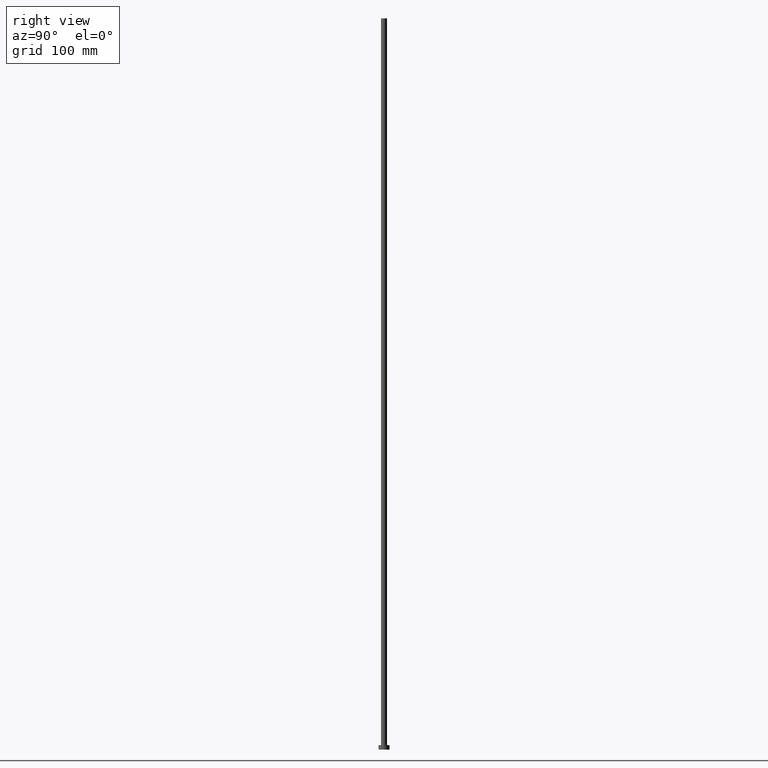
[diagram: clean part render]
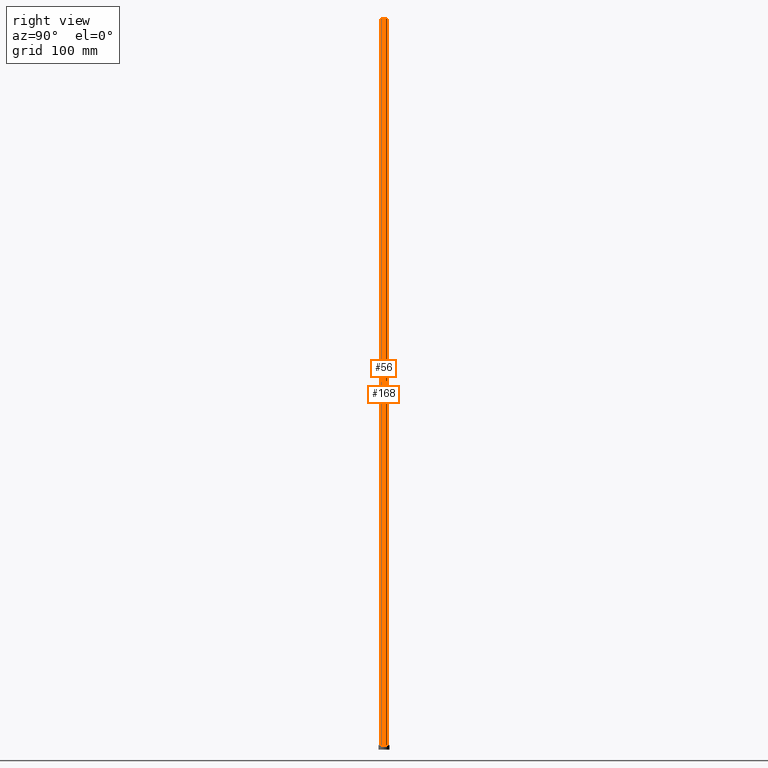
[diagram: same view with one multi-face feature highlighted, each face labeled with its STEP entity id]
A machine part, right view. The highlighted faces form ONE feature: a constant-radius fillet chain: 2 tangent blend faces with common blend radius 3.25 mm. The faces share edges in the B-rep.
Their STEP definitions:
[1] entity #168 (Cylinder):
#10 = EDGE_CURVE ( 'NONE', #109, #92, #190, .T. ) ;
#11 = ORIENTED_EDGE ( 'NONE', *, *, #247, .F. ) ;
#30 = EDGE_CURVE ( 'NONE', #94, #150, #206, .T. ) ;
#32 = CYLINDRICAL_SURFACE ( 'NONE', #170, 3.250000000000000444 ) ;
#50 = CARTESIAN_POINT ( 'NONE',  ( -3.250000000000000444, 0.000000000000000000, 800.0000000000000000 ) ) ;
#52 = EDGE_CURVE ( 'NONE', #109, #94, #119, .T. ) ;
#54 = AXIS2_PLACEMENT_3D ( 'NONE', #117, #160, #223 ) ;
#58 = DIRECTION ( 'NONE',  ( -0.000000000000000000, -0.000000000000000000, -1.000000000000000000 ) ) ;
#62 = CARTESIAN_POINT ( 'NONE',  ( 0.000000000000000000, 0.000000000000000000, 800.0000000000000000 ) ) ;
#68 = EDGE_LOOP ( 'NONE', ( #172, #131, #189, #11 ) ) ;
#76 = CARTESIAN_POINT ( 'NONE',  ( 3.250000000000000444, 3.980102097228898231E-16, 800.0000000000000000 ) ) ;
#82 = DIRECTION ( 'NONE',  ( -0.000000000000000000, -0.000000000000000000, -1.000000000000000000 ) ) ;
#91 = VECTOR ( 'NONE', #82, 1000.000000000000000 ) ;
#92 = VERTEX_POINT ( 'NONE', #140 ) ;
#94 = VERTEX_POINT ( 'NONE', #197 ) ;
#109 = VERTEX_POINT ( 'NONE', #218 ) ;
#117 = CARTESIAN_POINT ( 'NONE',  ( 0.000000000000000000, 0.000000000000000000, 5.000000000000000000 ) ) ;
#119 = LINE ( 'NONE', #76, #244 ) ;
#131 = ORIENTED_EDGE ( 'NONE', *, *, #52, .T. ) ;
#140 = CARTESIAN_POINT ( 'NONE',  ( -3.250000000000000444, 0.000000000000000000, 800.0000000000000000 ) ) ;
#142 = LINE ( 'NONE', #50, #91 ) ;
#150 = VERTEX_POINT ( 'NONE', #199 ) ;
#154 = DIRECTION ( 'NONE',  ( -0.000000000000000000, -0.000000000000000000, -1.000000000000000000 ) ) ;
#160 = DIRECTION ( 'NONE',  ( 0.000000000000000000, 0.000000000000000000, 1.000000000000000000 ) ) ;
#168 = ADVANCED_FACE ( 'NONE', ( #237 ), #32, .T. ) ;
#170 = AXIS2_PLACEMENT_3D ( 'NONE', #246, #58, #231 ) ;
#172 = ORIENTED_EDGE ( 'NONE', *, *, #10, .F. ) ;
#189 = ORIENTED_EDGE ( 'NONE', *, *, #30, .T. ) ;
#190 = CIRCLE ( 'NONE', #240, 3.250000000000000444 ) ;
#197 = CARTESIAN_POINT ( 'NONE',  ( 3.250000000000000444, 3.980102097228898231E-16, 5.000000000000000000 ) ) ;
#199 = CARTESIAN_POINT ( 'NONE',  ( -3.250000000000000444, 0.000000000000000000, 5.000000000000000000 ) ) ;
#206 = CIRCLE ( 'NONE', #54, 3.250000000000000444 ) ;
#214 = DIRECTION ( 'NONE',  ( 0.000000000000000000, 0.000000000000000000, 1.000000000000000000 ) ) ;
#218 = CARTESIAN_POINT ( 'NONE',  ( 3.250000000000000444, 3.980102097228898231E-16, 800.0000000000000000 ) ) ;
#223 = DIRECTION ( 'NONE',  ( 1.000000000000000000, 0.000000000000000000, 0.000000000000000000 ) ) ;
#231 = DIRECTION ( 'NONE',  ( -1.000000000000000000, 0.000000000000000000, 0.000000000000000000 ) ) ;
#237 = FACE_OUTER_BOUND ( 'NONE', #68, .T. ) ;
#239 = DIRECTION ( 'NONE',  ( 1.000000000000000000, 0.000000000000000000, 0.000000000000000000 ) ) ;
#240 = AXIS2_PLACEMENT_3D ( 'NONE', #62, #214, #239 ) ;
#244 = VECTOR ( 'NONE', #154, 1000.000000000000000 ) ;
#246 = CARTESIAN_POINT ( 'NONE',  ( 0.000000000000000000, 0.000000000000000000, 800.0000000000000000 ) ) ;
#247 = EDGE_CURVE ( 'NONE', #92, #150, #142, .T. ) ;
[2] entity #56 (Cylinder):
#13 = EDGE_LOOP ( 'NONE', ( #192, #71, #113, #37 ) ) ;
#21 = DIRECTION ( 'NONE',  ( -1.000000000000000000, 0.000000000000000000, 0.000000000000000000 ) ) ;
#23 = CARTESIAN_POINT ( 'NONE',  ( 0.000000000000000000, 0.000000000000000000, 800.0000000000000000 ) ) ;
#31 = CIRCLE ( 'NONE', #207, 3.250000000000000444 ) ;
#35 = CARTESIAN_POINT ( 'NONE',  ( 0.000000000000000000, 0.000000000000000000, 800.0000000000000000 ) ) ;
#37 = ORIENTED_EDGE ( 'NONE', *, *, #153, .T. ) ;
#50 = CARTESIAN_POINT ( 'NONE',  ( -3.250000000000000444, 0.000000000000000000, 800.0000000000000000 ) ) ;
#52 = EDGE_CURVE ( 'NONE', #109, #94, #119, .T. ) ;
#56 = ADVANCED_FACE ( 'NONE', ( #195 ), #96, .T. ) ;
#71 = ORIENTED_EDGE ( 'NONE', *, *, #171, .F. ) ;
#76 = CARTESIAN_POINT ( 'NONE',  ( 3.250000000000000444, 3.980102097228898231E-16, 800.0000000000000000 ) ) ;
#82 = DIRECTION ( 'NONE',  ( -0.000000000000000000, -0.000000000000000000, -1.000000000000000000 ) ) ;
#86 = DIRECTION ( 'NONE',  ( 0.000000000000000000, 0.000000000000000000, 1.000000000000000000 ) ) ;
#91 = VECTOR ( 'NONE', #82, 1000.000000000000000 ) ;
#92 = VERTEX_POINT ( 'NONE', #140 ) ;
#94 = VERTEX_POINT ( 'NONE', #197 ) ;
#96 = CYLINDRICAL_SURFACE ( 'NONE', #136, 3.250000000000000444 ) ;
#105 = AXIS2_PLACEMENT_3D ( 'NONE', #35, #110, #186 ) ;
#109 = VERTEX_POINT ( 'NONE', #218 ) ;
#110 = DIRECTION ( 'NONE',  ( 0.000000000000000000, 0.000000000000000000, 1.000000000000000000 ) ) ;
#113 = ORIENTED_EDGE ( 'NONE', *, *, #247, .T. ) ;
#116 = CIRCLE ( 'NONE', #105, 3.250000000000000444 ) ;
#119 = LINE ( 'NONE', #76, #244 ) ;
#136 = AXIS2_PLACEMENT_3D ( 'NONE', #23, #242, #21 ) ;
#140 = CARTESIAN_POINT ( 'NONE',  ( -3.250000000000000444, 0.000000000000000000, 800.0000000000000000 ) ) ;
#142 = LINE ( 'NONE', #50, #91 ) ;
#150 = VERTEX_POINT ( 'NONE', #199 ) ;
#152 = DIRECTION ( 'NONE',  ( 1.000000000000000000, 0.000000000000000000, 0.000000000000000000 ) ) ;
#153 = EDGE_CURVE ( 'NONE', #150, #94, #31, .T. ) ;
#154 = DIRECTION ( 'NONE',  ( -0.000000000000000000, -0.000000000000000000, -1.000000000000000000 ) ) ;
#171 = EDGE_CURVE ( 'NONE', #92, #109, #116, .T. ) ;
#186 = DIRECTION ( 'NONE',  ( 1.000000000000000000, 0.000000000000000000, 0.000000000000000000 ) ) ;
#187 = CARTESIAN_POINT ( 'NONE',  ( 0.000000000000000000, 0.000000000000000000, 5.000000000000000000 ) ) ;
#192 = ORIENTED_EDGE ( 'NONE', *, *, #52, .F. ) ;
#195 = FACE_OUTER_BOUND ( 'NONE', #13, .T. ) ;
#197 = CARTESIAN_POINT ( 'NONE',  ( 3.250000000000000444, 3.980102097228898231E-16, 5.000000000000000000 ) ) ;
#199 = CARTESIAN_POINT ( 'NONE',  ( -3.250000000000000444, 0.000000000000000000, 5.000000000000000000 ) ) ;
#207 = AXIS2_PLACEMENT_3D ( 'NONE', #187, #86, #152 ) ;
#218 = CARTESIAN_POINT ( 'NONE',  ( 3.250000000000000444, 3.980102097228898231E-16, 800.0000000000000000 ) ) ;
#242 = DIRECTION ( 'NONE',  ( -0.000000000000000000, -0.000000000000000000, -1.000000000000000000 ) ) ;
#244 = VECTOR ( 'NONE', #154, 1000.000000000000000 ) ;
#247 = EDGE_CURVE ( 'NONE', #92, #150, #142, .T. ) ;